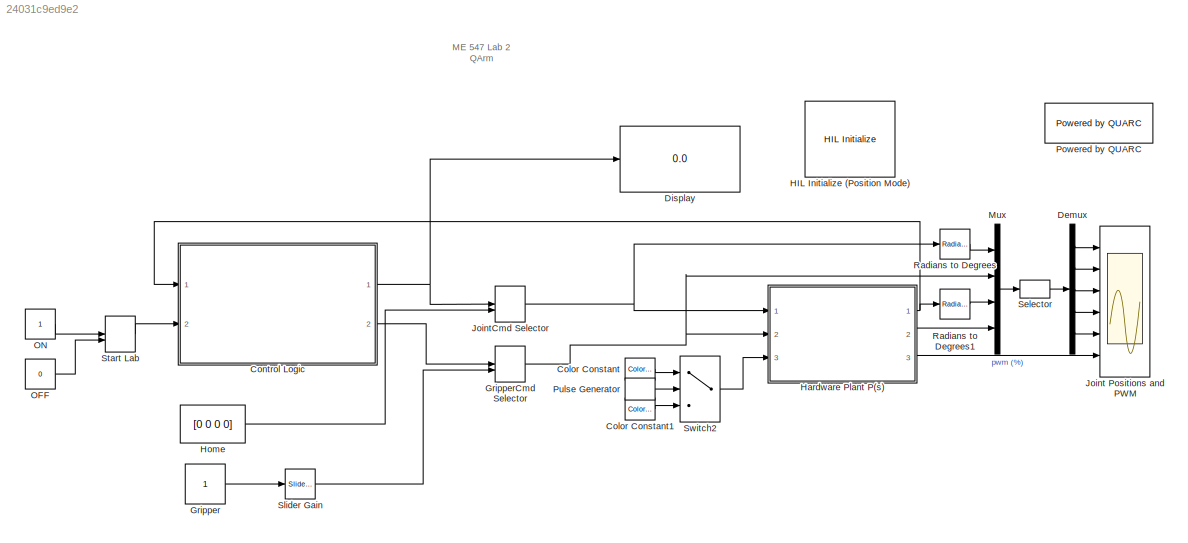
MODEL slx_24031c9ed9e2
KIND model
CONFIG AbsTol = auto
CONFIG EnableMultiTasking = on
CONFIG FixedStep = 1/500
CONFIG MaxStep = auto
CONFIG MinStep = auto
CONFIG RelTol = 1e-3
CONFIG SampleTimeConstraint = Unconstrained
CONFIG SolverName = ode4
CONFIG StartTime = 0.0
CONFIG StopTime = inf
BLOCK [Constant]  OFF
  Value = 0
BLOCK [Constant]  ON
BLOCK [Reference] Color Constant  REF=quarc_library/Sources/Signals/Color Constant
  Ports = [0, 1]
  SourceBlock = quarc_library/Sources/Signals/Color Constant
  SourceProductName = QUARC Targets
  SourceType = Color Constant
BLOCK [Reference] Color Constant1  REF=quarc_library/Sources/Signals/Color Constant
  Ports = [0, 1]
  SourceBlock = quarc_library/Sources/Signals/Color Constant
  SourceProductName = QUARC Targets
  SourceType = Color Constant
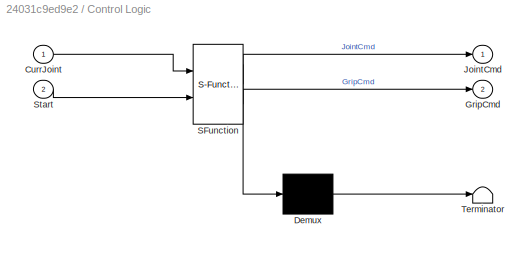
BLOCK [SubSystem] Control Logic
  ErrorFcn = Stateflow.Translate.translate
  PermitHierarchicalResolution = ExplicitOnly
  Ports = [2, 2]
  RequestExecContextInheritance = off
  SFBlockType = Chart
  TreatAsAtomicUnit = on
BLOCK [Demux] Control Logic/ Demux 
  Outputs = 1
  Ports = [1, 1]
BLOCK [S-Function] Control Logic/ SFunction 
  EnableBusSupport = off
  FunctionName = sf_sfun
  PortCounts = [2 3]
  Ports = [2, 3]
  SFcnIsStateOwnerBlock = off
  SFunctionDeploymentMode = off
  Tag = Stateflow S-Function 3
BLOCK [Terminator] Control Logic/ Terminator 
BLOCK [Inport] Control Logic/CurrJoint
BLOCK [Outport] Control Logic/GripCmd
  Port = 2
BLOCK [Outport] Control Logic/JointCmd
BLOCK [Inport] Control Logic/Start
  Port = 2
BLOCK [Demux] Demux
  Outputs = [2 2 2 2 2]
  Ports = [1, 5]
BLOCK [Display] Display
  Decimation = 1
  Ports = [1]
BLOCK [Constant] Gripper
BLOCK [ManualSwitch] GripperCmd Selector
BLOCK [Reference] HIL Initialize (Position Mode)  REF=quarc_library/Data Acquisition/Generic/Configuration/HIL Initialize
  AttributesFormatString = %<object_name> (%<board_type>-%<board_number>)
  Ports = []
  SourceBlock = quarc_library/Data Acquisition/Generic/Configuration/HIL Initialize
  SourceProductName = QUARC Targets
  SourceType = HIL Initialize
  UserDataPersistent = on
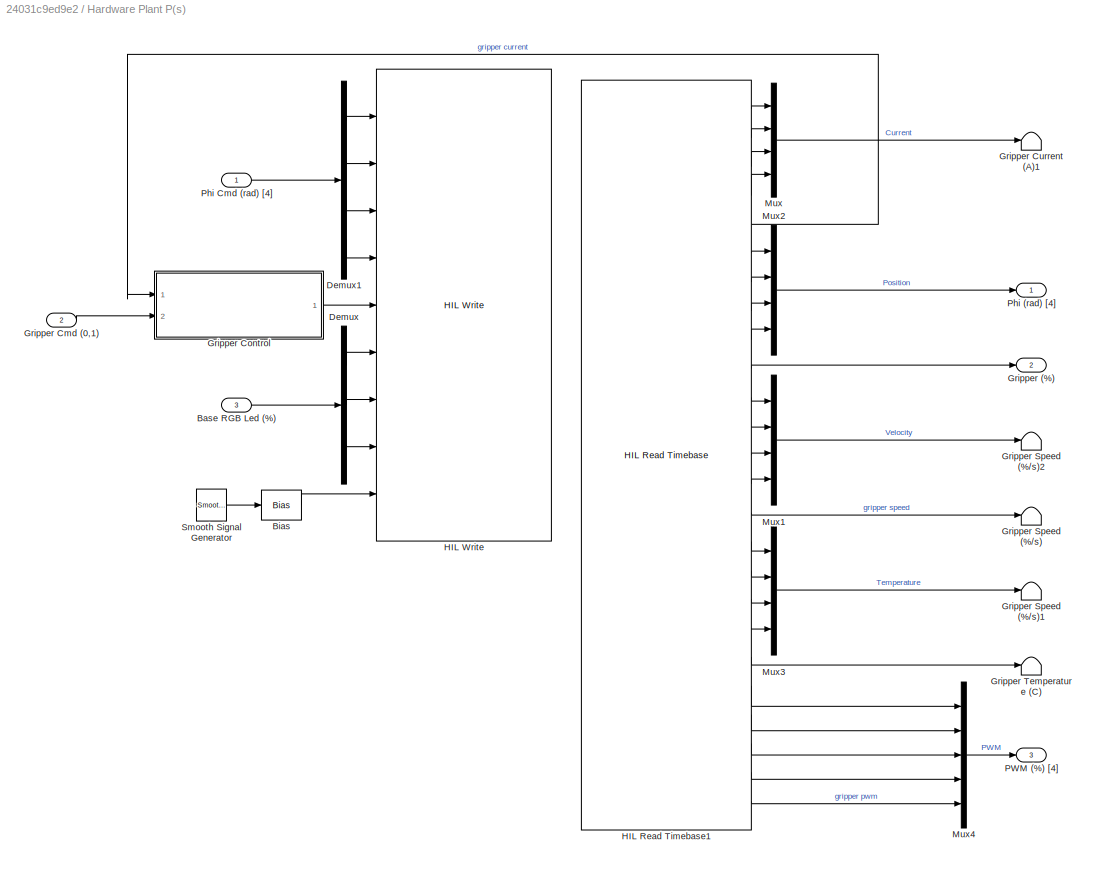
BLOCK [SubSystem] Hardware Plant P(s)
  Ports = [3, 3]
  RequestExecContextInheritance = off
BLOCK [Inport] Hardware Plant P(s)/Base RGB Led (%)
  Port = 3
BLOCK [Bias] Hardware Plant P(s)/Bias
  Bias = 0.5
  SaturateOnIntegerOverflow = off
BLOCK [Demux] Hardware Plant P(s)/Demux
  Outputs = 3
  Ports = [1, 3]
BLOCK [Demux] Hardware Plant P(s)/Demux1
  Ports = [1, 4]
BLOCK [Outport] Hardware Plant P(s)/Gripper (%)
  Port = 2
  VectorParamsAs1DForOutWhenUnconnected = off
BLOCK [Inport] Hardware Plant P(s)/Gripper Cmd (0,1)
  Port = 2
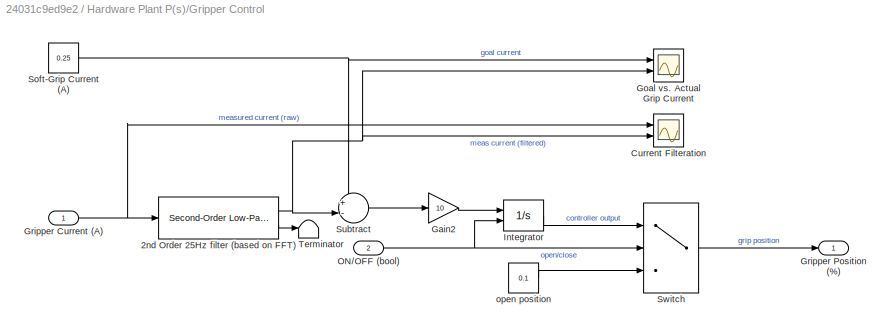
BLOCK [SubSystem] Hardware Plant P(s)/Gripper Control
  Ports = [2, 1]
  RequestExecContextInheritance = off
BLOCK [Reference] Hardware Plant P(s)/Gripper Control/2nd Order 25Hz filter (based on FFT)  REF=quarc_library/Continuous/Second-Order
Low-Pass Filter
  Ports = [1, 2]
  SourceBlock = quarc_library/Continuous/Second-Order\nLow-Pass Filter
  SourceProductName = QUARC Targets
  SourceType = Second-Order Low-Pass Filter
BLOCK [Scope] Hardware Plant P(s)/Gripper Control/Current Filteration
  Floating = off
  NameLocation = top
  NumInputPorts = 2
  Ports = [2]
  ScopeSpecificationString = Simulink.scopes.TimeScopeBlockCfg('CurrentConfiguration', extmgr.ConfigurationSet(extmgr.Configuration('Core','General UI',true),extmgr.Configuration('Core','Source UI',true),extmgr.Configuration('Sources','WiredSimulink',true,'DataLoggingVariableName','ScopeData5'),extmgr.Configuration('Visuals','Time Domain',true,'SerializedDisplays',{struct('MinYLimReal','-0.01447','MaxYLimReal','0.62651','YLab...<+1429ch>
BLOCK [Gain] Hardware Plant P(s)/Gripper Control/Gain2
  Gain = 10
BLOCK [Scope] Hardware Plant P(s)/Gripper Control/Goal vs. Actual Grip Current
  Floating = off
  NameLocation = top
  NumInputPorts = 2
  Ports = [2]
  ScopeSpecificationString = Simulink.scopes.TimeScopeBlockCfg('CurrentConfiguration', extmgr.ConfigurationSet(extmgr.Configuration('Core','General UI',true),extmgr.Configuration('Core','Source UI',true),extmgr.Configuration('Sources','WiredSimulink',true,'DataLoggingVariableName','ScopeData4'),extmgr.Configuration('Visuals','Time Domain',true,'SerializedDisplays',{struct('MinYLimReal','0.00229','MaxYLimReal','0.27702','YLabe...<+1426ch>
BLOCK [Inport] Hardware Plant P(s)/Gripper Control/Gripper Current (A)
BLOCK [Outport] Hardware Plant P(s)/Gripper Control/Gripper Position (%)
  VectorParamsAs1DForOutWhenUnconnected = off
BLOCK [Integrator] Hardware Plant P(s)/Gripper Control/Integrator
  ExternalReset = either
  InitialCondition = 0.1
  LimitOutput = on
  LowerSaturationLimit = 0.1
  Ports = [2, 1]
  UpperSaturationLimit = 0.9
BLOCK [Inport] Hardware Plant P(s)/Gripper Control/ON//OFF (bool)
  Port = 2
BLOCK [Constant] Hardware Plant P(s)/Gripper Control/Soft-Grip Current (A)
  Value = 0.25
BLOCK [Sum] Hardware Plant P(s)/Gripper Control/Subtract
  Inputs = +-|
  Ports = [2, 1]
BLOCK [Switch] Hardware Plant P(s)/Gripper Control/Switch
  Criteria = u2 > Threshold
  InputSameDT = off
  SaturateOnIntegerOverflow = off
BLOCK [Terminator] Hardware Plant P(s)/Gripper Control/Terminator
BLOCK [Constant] Hardware Plant P(s)/Gripper Control/open position
  Value = 0.1
BLOCK [Terminator] Hardware Plant P(s)/Gripper Current (A)1
BLOCK [Terminator] Hardware Plant P(s)/Gripper Speed (%//s)
BLOCK [Terminator] Hardware Plant P(s)/Gripper Speed (%//s)1
BLOCK [Terminator] Hardware Plant P(s)/Gripper Speed (%//s)2
BLOCK [Terminator] Hardware Plant P(s)/Gripper Temperature (C)
BLOCK [Reference] Hardware Plant P(s)/HIL Read Timebase1  REF=quarc_library/Data Acquisition/Generic/Timebases/HIL Read
Timebase
  AttributesFormatString = (%<object_name>)
  Ports = [0, 25]
  SourceBlock = quarc_library/Data Acquisition/Generic/Timebases/HIL Read\nTimebase
  SourceProductName = QUARC Targets
  SourceType = HIL Read Timebase
  UserDataPersistent = on
BLOCK [Reference] Hardware Plant P(s)/HIL Write  REF=quarc_library/Data Acquisition/Generic/Immediate I//O/HIL Write
  AttributesFormatString = (%<object_name>)
  Ports = [9]
  SourceBlock = quarc_library/Data Acquisition/Generic/Immediate I//O/HIL Write
  SourceProductName = QUARC Targets
  SourceType = HIL Write
  UserDataPersistent = on
BLOCK [Mux] Hardware Plant P(s)/Mux
  DisplayOption = bar
  Ports = [4, 1]
BLOCK [Mux] Hardware Plant P(s)/Mux1
  DisplayOption = bar
  Ports = [4, 1]
BLOCK [Mux] Hardware Plant P(s)/Mux2
  DisplayOption = bar
  Ports = [4, 1]
BLOCK [Mux] Hardware Plant P(s)/Mux3
  DisplayOption = bar
  Ports = [4, 1]
BLOCK [Mux] Hardware Plant P(s)/Mux4
  DisplayOption = bar
  Inputs = 5
  Ports = [5, 1]
BLOCK [Outport] Hardware Plant P(s)/PWM (%) [4]
  Port = 3
  VectorParamsAs1DForOutWhenUnconnected = off
BLOCK [Outport] Hardware Plant P(s)/Phi (rad) [4]
  VectorParamsAs1DForOutWhenUnconnected = off
BLOCK [Inport] Hardware Plant P(s)/Phi Cmd (rad) [4]
BLOCK [Reference] Hardware Plant P(s)/Smooth Signal Generator  REF=quarc_library/Sources/Signals/Smooth Signal
Generator
  Ports = [0, 1]
  SourceBlock = quarc_library/Sources/Signals/Smooth Signal\nGenerator
  SourceProductName = QUARC Targets
  SourceType = Smooth Signal Generator
BLOCK [Constant] Home
  Value = [0 0 0 0]
BLOCK [Scope] Joint Positions and PWM
  Floating = off
  NumInputPorts = 6
  Ports = [6]
  ScopeSpecificationString = Simulink.scopes.TimeScopeBlockCfg('CurrentConfiguration', extmgr.ConfigurationSet(extmgr.Configuration('Core','General UI',true),extmgr.Configuration('Core','Source UI',true),extmgr.Configuration('Sources','WiredSimulink',true),extmgr.Configuration('Visuals','Time Domain',true,'SerializedDisplays',{struct('MinYLimReal','-28.43376','MaxYLimReal','28.21577','YLabelReal','degrees','MinYLimMag','0.000...<+5858ch>
BLOCK [ManualSwitch] JointCmd Selector
BLOCK [Mux] Mux
  DisplayOption = bar
  Ports = [4, 1]
BLOCK [Reference] Powered by QUARC  REF=quarc_library/Logos/Powered by QUARC
  Ports = []
  SourceBlock = quarc_library/Logos/Powered by QUARC
  SourceProductName = QUARC Targets
  SourceType = Powered by QUARC
BLOCK [DiscretePulseGenerator] Pulse Generator
  NameLocation = top
  Period = 1
  Ports = [0, 1]
  PulseType = Time based
  PulseWidth = 50
BLOCK [Reference] Radians to Degrees  REF=simulink_extras/Transformations/Radians
to Degrees
  Ports = [1, 1]
  SourceBlock = simulink_extras/Transformations/Radians\nto Degrees
  SourceProductBaseCode = SL
  SourceType = RadiansToDegrees
BLOCK [Reference] Radians to Degrees1  REF=simulink_extras/Transformations/Radians
to Degrees
  Ports = [1, 1]
  SourceBlock = simulink_extras/Transformations/Radians\nto Degrees
  SourceProductBaseCode = SL
  SourceType = RadiansToDegrees
BLOCK [Selector] Selector
  IndexOptions = Index vector (dialog)
  Indices = [1 6 2 7 3 8 4 9 5 10]
  InputPortWidth = 10
  OutputSizes = 1
  Ports = [1, 1]
BLOCK [Reference] Slider Gain  REF=simulink/Math
Operations/Slider
Gain
  Ports = [1, 1]
  SourceBlock = simulink/Math\nOperations/Slider\nGain
  SourceProductBaseCode = SL
  SourceType = Slider Gain
BLOCK [ManualSwitch] Start Lab
BLOCK [Switch] Switch2
  Criteria = u2 > Threshold
  InputSameDT = off
  SaturateOnIntegerOverflow = off
ANNOTATION (root): ME 547 Lab 2 QArm
LINE  OFF:1 -> Start Lab:2
LINE  ON:1 -> Start Lab:1
LINE Color Constant1:1 -> Switch2:3
LINE Color Constant:1 -> Switch2:1
NET Control Logic:1 -> Display:1, JointCmd Selector:1
LINE Control Logic:2 -> GripperCmd Selector:1
LINE Demux:1 -> Joint Positions and PWM:1
LINE Demux:2 -> Joint Positions and PWM:2
LINE Demux:3 -> Joint Positions and PWM:3
LINE Demux:4 -> Joint Positions and PWM:4
LINE Demux:5 -> Joint Positions and PWM:5
LINE Gripper:1 -> Slider Gain:1
NET GripperCmd Selector:1 -> Hardware Plant P(s):2, Mux:2
LINE Hardware Plant P(s)/Base RGB Led (%):1 -> Hardware Plant P(s)/Demux:1
LINE Hardware Plant P(s)/Bias:1 -> Hardware Plant P(s)/HIL Write:9
LINE Hardware Plant P(s)/Demux1:1 -> Hardware Plant P(s)/HIL Write:1
LINE Hardware Plant P(s)/Demux1:2 -> Hardware Plant P(s)/HIL Write:2
LINE Hardware Plant P(s)/Demux1:3 -> Hardware Plant P(s)/HIL Write:3
LINE Hardware Plant P(s)/Demux1:4 -> Hardware Plant P(s)/HIL Write:4
LINE Hardware Plant P(s)/Demux:1 -> Hardware Plant P(s)/HIL Write:6
LINE Hardware Plant P(s)/Demux:2 -> Hardware Plant P(s)/HIL Write:7
LINE Hardware Plant P(s)/Demux:3 -> Hardware Plant P(s)/HIL Write:8
LINE Hardware Plant P(s)/Gripper Cmd (0,1):1 -> Hardware Plant P(s)/Gripper Control:2
NET Hardware Plant P(s)/Gripper Control/2nd Order 25Hz filter (based on FFT):1 -> Hardware Plant P(s)/Gripper Control/Current Filteration:2, Hardware Plant P(s)/Gripper Control/Goal vs. Actual Grip Current:2, Hardware Plant P(s)/Gripper Control/Subtract:2
LINE Hardware Plant P(s)/Gripper Control/2nd Order 25Hz filter (based on FFT):2 -> Hardware Plant P(s)/Gripper Control/Terminator:1
LINE Hardware Plant P(s)/Gripper Control/Gain2:1 -> Hardware Plant P(s)/Gripper Control/Integrator:1
NET Hardware Plant P(s)/Gripper Control/Gripper Current (A):1 -> Hardware Plant P(s)/Gripper Control/2nd Order 25Hz filter (based on FFT):1, Hardware Plant P(s)/Gripper Control/Current Filteration:1
LINE Hardware Plant P(s)/Gripper Control/Integrator:1 -> Hardware Plant P(s)/Gripper Control/Switch:1
NET Hardware Plant P(s)/Gripper Control/ON//OFF (bool):1 -> Hardware Plant P(s)/Gripper Control/Integrator:2, Hardware Plant P(s)/Gripper Control/Switch:2
NET Hardware Plant P(s)/Gripper Control/Soft-Grip Current (A):1 -> Hardware Plant P(s)/Gripper Control/Goal vs. Actual Grip Current:1, Hardware Plant P(s)/Gripper Control/Subtract:1
LINE Hardware Plant P(s)/Gripper Control/Subtract:1 -> Hardware Plant P(s)/Gripper Control/Gain2:1
LINE Hardware Plant P(s)/Gripper Control/Switch:1 -> Hardware Plant P(s)/Gripper Control/Gripper Position (%):1
LINE Hardware Plant P(s)/Gripper Control/open position:1 -> Hardware Plant P(s)/Gripper Control/Switch:3
LINE Hardware Plant P(s)/Gripper Control:1 -> Hardware Plant P(s)/HIL Write:5
LINE Hardware Plant P(s)/HIL Read Timebase1:1 -> Hardware Plant P(s)/Mux:1
LINE Hardware Plant P(s)/HIL Read Timebase1:10 -> Hardware Plant P(s)/Gripper (%):1
LINE Hardware Plant P(s)/HIL Read Timebase1:11 -> Hardware Plant P(s)/Mux1:1
LINE Hardware Plant P(s)/HIL Read Timebase1:12 -> Hardware Plant P(s)/Mux1:2
LINE Hardware Plant P(s)/HIL Read Timebase1:13 -> Hardware Plant P(s)/Mux1:3
LINE Hardware Plant P(s)/HIL Read Timebase1:14 -> Hardware Plant P(s)/Mux1:4
LINE Hardware Plant P(s)/HIL Read Timebase1:15 -> Hardware Plant P(s)/Gripper Speed (%//s):1
LINE Hardware Plant P(s)/HIL Read Timebase1:16 -> Hardware Plant P(s)/Mux3:1
LINE Hardware Plant P(s)/HIL Read Timebase1:17 -> Hardware Plant P(s)/Mux3:2
LINE Hardware Plant P(s)/HIL Read Timebase1:18 -> Hardware Plant P(s)/Mux3:3
LINE Hardware Plant P(s)/HIL Read Timebase1:19 -> Hardware Plant P(s)/Mux3:4
LINE Hardware Plant P(s)/HIL Read Timebase1:2 -> Hardware Plant P(s)/Mux:2
LINE Hardware Plant P(s)/HIL Read Timebase1:20 -> Hardware Plant P(s)/Gripper Temperature (C):1
LINE Hardware Plant P(s)/HIL Read Timebase1:21 -> Hardware Plant P(s)/Mux4:1
LINE Hardware Plant P(s)/HIL Read Timebase1:22 -> Hardware Plant P(s)/Mux4:2
LINE Hardware Plant P(s)/HIL Read Timebase1:23 -> Hardware Plant P(s)/Mux4:3
LINE Hardware Plant P(s)/HIL Read Timebase1:24 -> Hardware Plant P(s)/Mux4:4
LINE Hardware Plant P(s)/HIL Read Timebase1:25 -> Hardware Plant P(s)/Mux4:5
LINE Hardware Plant P(s)/HIL Read Timebase1:3 -> Hardware Plant P(s)/Mux:3
LINE Hardware Plant P(s)/HIL Read Timebase1:4 -> Hardware Plant P(s)/Mux:4
LINE Hardware Plant P(s)/HIL Read Timebase1:5 -> Hardware Plant P(s)/Gripper Control:1
LINE Hardware Plant P(s)/HIL Read Timebase1:6 -> Hardware Plant P(s)/Mux2:1
LINE Hardware Plant P(s)/HIL Read Timebase1:7 -> Hardware Plant P(s)/Mux2:2
LINE Hardware Plant P(s)/HIL Read Timebase1:8 -> Hardware Plant P(s)/Mux2:3
LINE Hardware Plant P(s)/HIL Read Timebase1:9 -> Hardware Plant P(s)/Mux2:4
LINE Hardware Plant P(s)/Mux1:1 -> Hardware Plant P(s)/Gripper Speed (%//s)2:1
LINE Hardware Plant P(s)/Mux2:1 -> Hardware Plant P(s)/Phi (rad) [4]:1
LINE Hardware Plant P(s)/Mux3:1 -> Hardware Plant P(s)/Gripper Speed (%//s)1:1
LINE Hardware Plant P(s)/Mux4:1 -> Hardware Plant P(s)/PWM (%) [4]:1
LINE Hardware Plant P(s)/Mux:1 -> Hardware Plant P(s)/Gripper Current (A)1:1
LINE Hardware Plant P(s)/Phi Cmd (rad) [4]:1 -> Hardware Plant P(s)/Demux1:1
LINE Hardware Plant P(s)/Smooth Signal Generator:1 -> Hardware Plant P(s)/Bias:1
NET Hardware Plant P(s):1 -> Control Logic:1, Radians to Degrees1:1
LINE Hardware Plant P(s):2 -> Mux:4
LINE Hardware Plant P(s):3 -> Joint Positions and PWM:6
LINE Home:1 -> JointCmd Selector:2
NET JointCmd Selector:1 -> Hardware Plant P(s):1, Radians to Degrees:1
LINE Mux:1 -> Selector:1
LINE Pulse Generator:1 -> Switch2:2
LINE Radians to Degrees1:1 -> Mux:3
LINE Radians to Degrees:1 -> Mux:1
LINE Selector:1 -> Demux:1
LINE Slider Gain:1 -> GripperCmd Selector:2
LINE Start Lab:1 -> Control Logic:2
LINE Switch2:1 -> Hardware Plant P(s):3
note: NET lines group one-source signal fan-out (src -> all destinations, sorted); 1:1 wires keep LINE
CHART Control Logic states=18 transitions=12
  STATE_LABEL 'TransMatrix = FrameTrans(index, theta)'
  STATE_LABEL 'SCRIPT:\nfunction TransMatrix = FrameTrans(index, theta)\nTransMatrix = [cos(theta(index)), -sin(theta(index))*cos(alpha(index)), sin(theta(index))*sin(alpha(index)), a(index)*cos(theta(index)); ... \n               sin(theta(index)), cos(theta(index))*cos(alpha(index)), -cos(theta(index))*sin(alpha(index)), a(index)*sin(theta(index)); ...\n               0, sin(alpha(index)), cos(alpha(index)), d(ind...<+41ch>'
  STATE_LABEL 'flag = checkThres(threshold, actual, target)'
  STATE_LABEL "SCRIPT:\nfunction flag = checkThres(threshold, actual, target)\ndiff = abs(actual-target);\nmax_diff = max(diff, [], 'all');\nif max_diff <= threshold\n    flag = 1;\nelse\n    flag = 0;\nend\nend\n \n"
  STATE_LABEL 'SimAng = DH2Sim(DHAng)'
  STATE_LABEL 'SCRIPT:\nfunction SimAng = DH2Sim(DHAng)\nSimAng = [0, 0, 0, 0];\nSimAng(1) = DHAng(1);\nSimAng(2) = DHAng(2)+atan(0.35/0.05);\nSimAng(3) = DHAng(3)+atan(0.05/0.35);\nSimAng(4) = DHAng(4);\nend\n'
  STATE_LABEL 'CurrPosition = FKine(T1, T2, T3, T4)'
  STATE_LABEL 'SCRIPT:\nfunction CurrPosition = FKine(T1, T2, T3, T4)\nT04 = T1*T2*T3*T4;\nCurrPosition = [T04(1, 4), T04(2, 4), T04(3, 4)];\nend\n'
  STATE_LABEL 'DHAng = Sim2DH(SimAng)'
  STATE_LABEL 'SCRIPT:\nfunction DHAng = Sim2DH(SimAng)\nDHAng = [0, 0, 0, 0];\nDHAng(1) = SimAng(1);\nDHAng(2) = SimAng(2)-atan(0.35/0.05);\nDHAng(3) = SimAng(3)-atan(0.05/0.35);\nDHAng(4) = SimAng(4);\nend\n'
  STATE_LABEL 'JTarget = IKine(Pos)'
  STATE_LABEL 'SCRIPT:\nfunction JTarget = IKine(Pos)\nxc = Pos(1);\nyc = Pos(2);\nzc = Pos(3);\n\ntheta1 = atan2(yc, xc);\n\nr = sqrt(xc^2+yc^2);\ns = zc-d(1);\nD = sqrt(r^2+s^2);\nF = (D^2-a(2)^2-d(4)^2)/(2*a(2)*d(4));\nang = atan2(sqrt((1-F^2)), F); % force elbow up\ntheta3 = -(pi/2-ang);\n\ndelta = atan2(d(4)*sin(ang), a(2)+d(4)*cos(ang));\ntheta2 = -(atan2(s,r)+delta);\n\nJTarget = [theta1, theta2, theta3, 0];\nend\n'
  STATE_LABEL 'Home\nentry:\nJointCmd = [0, 0, 0, 0];'
  STATE_LABEL 'Start\nentry:\n% DH parameters\na = [0, sqrt(350^2+50^2), 0, 0];\nalpha = [-pi/2, 0, -pi/2, 0];\nd = [140, 0, 0, 360];\n% Joint angles in rad\nA = []; %xyz = 400, 400, 150\nB = []; %xyz = 400, 400, 110\nC = []; %xyz = 450, 200, 300\nD = []; %xyz = 500, 0, 350\nE = []; %xyz = 600, -100, 200\nF = []; %xyz = 600, -100, 135\n'
  STATE_LABEL 'MoveBackToE\nentry:\nJointCmd = DH2Sim(E);'
  STATE_LABEL 'OpenGripper\nentry:\nGripCmd = 0;'
  STATE_LABEL 'MoveToA\nentry:\nJointCmd = DH2Sim(A);'
  STATE_LABEL 'MoveToF\nentry:\nJointCmd = DH2Sim(F);'
  STATE_LABEL 'MoveToB\nentry:\nJointCmd = DH2Sim(B);'
  STATE_LABEL 'MoveToE\nentry:\nJointCmd = DH2Sim(E);'
  STATE_LABEL 'MoveToD\nentry:\nJointCmd = DH2Sim(D);'
  STATE_LABEL 'CloseGripper\nentry:\nGripCmd = 0.8;'
  STATE_LABEL 'MoveBackToA\nentry:\nJointCmd = DH2Sim(A);'
  STATE_LABEL 'MoveToC\nentry:\nJointCmd = DH2Sim(C);'
CHART  states=0 transitions=0
